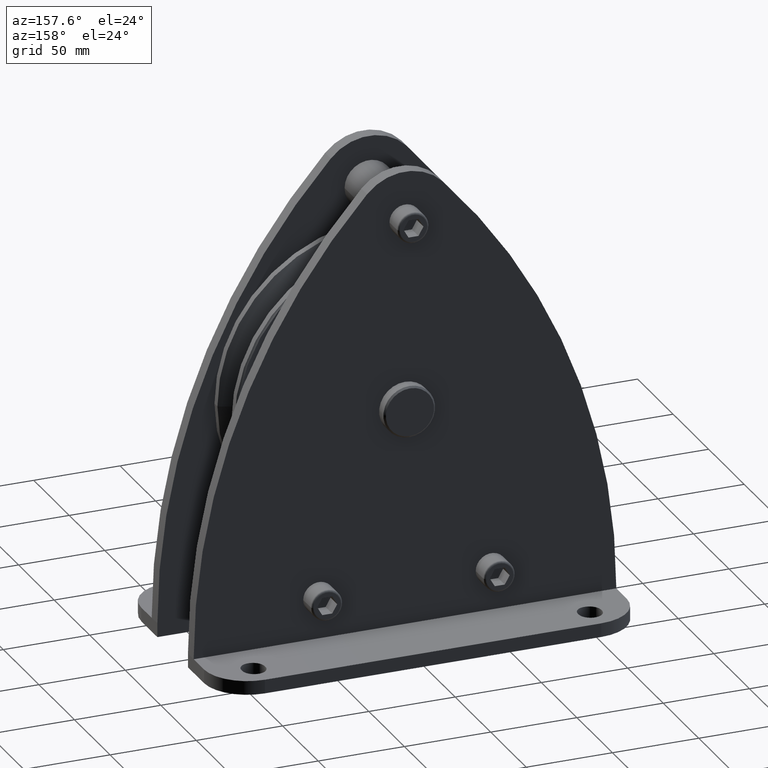
[diagram: clean part render]
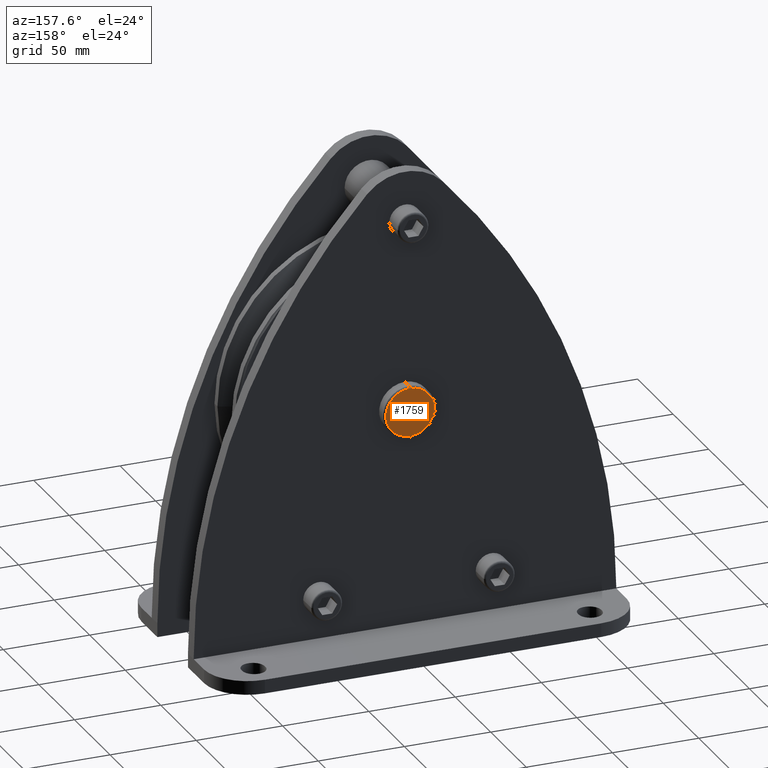
[diagram: same view with one face highlighted and labeled with its STEP entity id]
A machine part, auxiliary view. The second image highlights one B-rep face of the part: STEP entity #1759.
In plain terms, the highlighted planar face has unit normal (0, 1, 0).
Its self-contained STEP definition (entity closure, byte-faithful):
#1759=ADVANCED_FACE('',(#3711),#3712,.T.);
#3711=FACE_OUTER_BOUND('',#5797,.T.);
#3712=PLANE('',#5798);
#5797=EDGE_LOOP('',(#11364,#11365));
#5798=AXIS2_PLACEMENT_3D('',#11366,#11367,#11368);
#11364=ORIENTED_EDGE('',*,*,#12522,.T.);
#11365=ORIENTED_EDGE('',*,*,#14446,.T.);
#11366=CARTESIAN_POINT('',(0.0,36.5,-7.0));
#11367=DIRECTION('',(0.0,1.0,0.0));
#11368=DIRECTION('',(0.0,0.0,-1.0));
#12522=EDGE_CURVE('',#15069,#15071,#15073,.T.);
#14446=EDGE_CURVE('',#15071,#15069,#17915,.T.);
#15069=VERTEX_POINT('',#19756);
#15071=VERTEX_POINT('',#19759);
#15073=CIRCLE('',#19762,14.0);
#17915=CIRCLE('',#26260,14.0);
#19756=CARTESIAN_POINT('',(0.0,36.5,-14.0));
#19759=CARTESIAN_POINT('',(-1.71450551880629E-015,36.5,14.0));
#19762=AXIS2_PLACEMENT_3D('',#27117,#27118,#27119);
#26260=AXIS2_PLACEMENT_3D('',#29361,#29362,#29363);
#27117=CARTESIAN_POINT('',(0.0,36.5,0.0));
#27118=DIRECTION('',(0.0,1.0,0.0));
#27119=DIRECTION('',(0.0,0.0,-1.0));
#29361=CARTESIAN_POINT('',(0.0,36.5,0.0));
#29362=DIRECTION('',(0.0,1.0,0.0));
#29363=DIRECTION('',(0.0,0.0,-1.0));